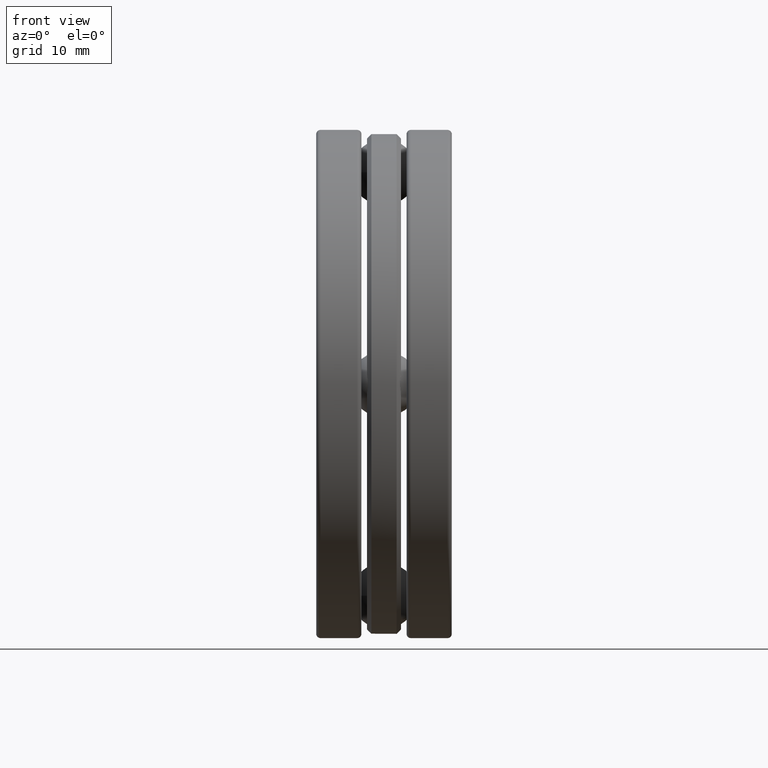
[diagram: clean part render]
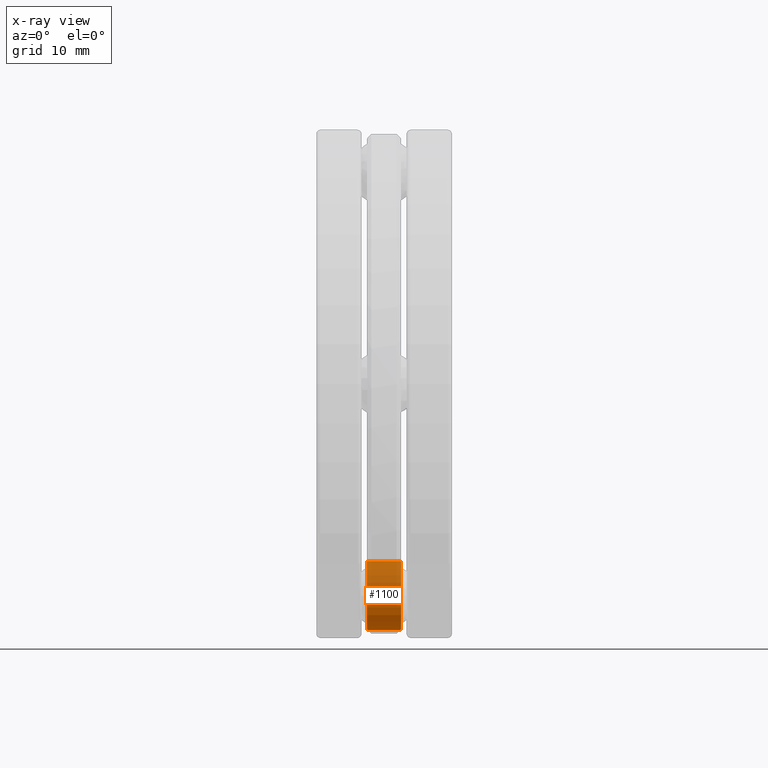
[diagram: x-ray — body ghosted, one internal face saturated and labeled with its STEP entity id]
A machine part, front view, then the same camera in x-ray: the body is ghosted and one INTERNAL B-rep face — a face not visible from any outside direction — is saturated and labeled: STEP entity #1100.
In plain terms, the highlighted cylindrical surface (bore or boss wall) has radius 4.0894 mm, axis along (1, 0, 0).
Its self-contained STEP definition (entity closure, byte-faithful):
#3 = EDGE_CURVE ( 'NONE', #685, #23, #1144, .T. ) ;
#23 = VERTEX_POINT ( 'NONE', #874 ) ;
#26 = DIRECTION ( 'NONE',  ( 1.000000000000000000, 0.0000000000000000000, 0.0000000000000000000 ) ) ;
#59 = CARTESIAN_POINT ( 'NONE',  ( 0.07450384706732948700, -0.01154806905999320400, -0.8232532177782148100 ) ) ;
#93 = CARTESIAN_POINT ( 'NONE',  ( -0.07874999999999997300, 0.03368825412629862500, -0.8268139763779528400 ) ) ;
#111 = B_SPLINE_CURVE_WITH_KNOTS ( 'NONE', 3,
 ( #1183, #803, #59, #884, #231, #331 ),
 .UNSPECIFIED., .F., .F.,
 ( 4, 2, 4 ),
 ( 8.164019558769507100E-007, 0.0008668633834641477500, 0.001732910364972418700 ),
 .UNSPECIFIED. ) ;
#116 = CARTESIAN_POINT ( 'NONE',  ( -0.3150393700787401700, -3.436490507756354400E-015, -0.9842500000000001800 ) ) ;
#143 = CARTESIAN_POINT ( 'NONE',  ( 0.07594311360279872000, 0.02672405530189333000, -1.143567882783040000 ) ) ;
#144 = CARTESIAN_POINT ( 'NONE',  ( 0.07875000000000000100, -3.436490507756354400E-015, -0.9842500000000001800 ) ) ;
#157 = EDGE_CURVE ( 'NONE', #716, #528, #179, .T. ) ;
#165 = ORIENTED_EDGE ( 'NONE', *, *, #636, .F. ) ;
#169 = EDGE_CURVE ( 'NONE', #883, #528, #308, .T. ) ;
#179 = B_SPLINE_CURVE_WITH_KNOTS ( 'NONE', 3,
 ( #1089, #143, #989, #800, #895, #889 ),
 .UNSPECIFIED., .F., .F.,
 ( 4, 2, 4 ),
 ( 9.507210780269754300E-007, 0.001018145390899835300, 0.002035340060721643900 ),
 .UNSPECIFIED. ) ;
#202 = CARTESIAN_POINT ( 'NONE',  ( -0.07874999999999997300, -0.03368825412630439800, -0.8268139763779525100 ) ) ;
#204 = CARTESIAN_POINT ( 'NONE',  ( 0.07874999999999997300, -0.03956052675460915200, -1.140313976377952600 ) ) ;
#231 = CARTESIAN_POINT ( 'NONE',  ( 0.07596646778480797800, 0.02275160098295670200, -0.8244737448228896000 ) ) ;
#308 = CIRCLE ( 'NONE', #1066, 0.1610000000000000000 ) ;
#310 = CARTESIAN_POINT ( 'NONE',  ( -0.07594311360279838700, -0.02672405530189974800, -1.143567882783040000 ) ) ;
#322 = DIRECTION ( 'NONE',  ( 0.0000000000000000000, -1.000000000000000000, 3.393599992129519500E-015 ) ) ;
#331 = CARTESIAN_POINT ( 'NONE',  ( 0.07875000000000000100, 0.03368825412629862500, -0.8268139763779528400 ) ) ;
#334 = EDGE_CURVE ( 'NONE', #421, #23, #367, .T. ) ;
#340 = DIRECTION ( 'NONE',  ( -1.000000000000000000, -0.0000000000000000000, -0.0000000000000000000 ) ) ;
#367 = CIRCLE ( 'NONE', #1129, 0.1610000000000000000 ) ;
#372 = CARTESIAN_POINT ( 'NONE',  ( -0.07874999999999997300, -0.03368825412630439800, -0.8268139763779525100 ) ) ;
#398 = CARTESIAN_POINT ( 'NONE',  ( -0.07450384706732947300, -0.01154806905999322000, -0.8232532177782148100 ) ) ;
#401 = CIRCLE ( 'NONE', #870, 0.1610000000000000000 ) ;
#406 = CARTESIAN_POINT ( 'NONE',  ( -0.07875000000000000100, 0.03956052675460119300, -1.140313976377952800 ) ) ;
#409 = CARTESIAN_POINT ( 'NONE',  ( -0.07874999999999984800, -0.03956052675460645200, -1.140313976377952800 ) ) ;
#421 = VERTEX_POINT ( 'NONE', #93 ) ;
#442 = DIRECTION ( 'NONE',  ( 0.0000000000000000000, -1.000000000000000000, 3.393599992129519500E-015 ) ) ;
#451 = VERTEX_POINT ( 'NONE', #372 ) ;
#452 = EDGE_CURVE ( 'NONE', #716, #498, #1115, .T. ) ;
#491 = EDGE_CURVE ( 'NONE', #451, #421, #1114, .T. ) ;
#494 = CARTESIAN_POINT ( 'NONE',  ( -0.07449616793591076800, 0.01145817135164384400, -0.8232467947708507200 ) ) ;
#498 = VERTEX_POINT ( 'NONE', #855 ) ;
#501 = ORIENTED_EDGE ( 'NONE', *, *, #491, .T. ) ;
#525 = CARTESIAN_POINT ( 'NONE',  ( -0.07874999999999997300, -3.436490507756354400E-015, -0.9842500000000001800 ) ) ;
#528 = VERTEX_POINT ( 'NONE', #204 ) ;
#555 = EDGE_CURVE ( 'NONE', #685, #451, #401, .T. ) ;
#578 = DIRECTION ( 'NONE',  ( 1.000000000000000000, 0.0000000000000000000, 0.0000000000000000000 ) ) ;
#583 = DIRECTION ( 'NONE',  ( 0.0000000000000000000, -1.000000000000000000, 3.393599992129519500E-015 ) ) ;
#589 = CARTESIAN_POINT ( 'NONE',  ( 0.07875000000000000100, -3.436490507756354400E-015, -0.9842500000000001800 ) ) ;
#636 = EDGE_CURVE ( 'NONE', #883, #498, #111, .T. ) ;
#666 = FACE_OUTER_BOUND ( 'NONE', #1195, .T. ) ;
#668 = CARTESIAN_POINT ( 'NONE',  ( -0.07596646778480793700, 0.02275160098295670900, -0.8244737448228896000 ) ) ;
#685 = VERTEX_POINT ( 'NONE', #1199 ) ;
#699 = CARTESIAN_POINT ( 'NONE',  ( -0.07449670548218125000, 0.01346727606613852400, -1.145253833422924500 ) ) ;
#716 = VERTEX_POINT ( 'NONE', #1109 ) ;
#745 = CARTESIAN_POINT ( 'NONE',  ( 0.07875000000000000100, -0.03368825412630439800, -0.8268139763779525100 ) ) ;
#748 = ORIENTED_EDGE ( 'NONE', *, *, #555, .T. ) ;
#749 = ORIENTED_EDGE ( 'NONE', *, *, #334, .T. ) ;
#771 = EDGE_LOOP ( 'NONE', ( #749, #827, #748, #501 ) ) ;
#783 = CARTESIAN_POINT ( 'NONE',  ( -0.07594283090128725600, 0.02672276244947110700, -1.143568210507118500 ) ) ;
#800 = CARTESIAN_POINT ( 'NONE',  ( 0.07449670548218120800, -0.01346727606614798800, -1.145253833422924100 ) ) ;
#801 = ORIENTED_EDGE ( 'NONE', *, *, #169, .T. ) ;
#803 = CARTESIAN_POINT ( 'NONE',  ( 0.07596697982295437500, -0.02275361280936530000, -0.8244741753147012400 ) ) ;
#807 = DIRECTION ( 'NONE',  ( 0.0000000000000000000, -1.000000000000000000, 3.393599992129519500E-015 ) ) ;
#827 = ORIENTED_EDGE ( 'NONE', *, *, #3, .F. ) ;
#855 = CARTESIAN_POINT ( 'NONE',  ( 0.07875000000000000100, 0.03368825412629862500, -0.8268139763779528400 ) ) ;
#866 = CARTESIAN_POINT ( 'NONE',  ( -0.07450330569084434600, -0.01355877705106513900, -1.145246153576407400 ) ) ;
#870 = AXIS2_PLACEMENT_3D ( 'NONE', #525, #340, #442 ) ;
#874 = CARTESIAN_POINT ( 'NONE',  ( -0.07875000000000000100, 0.03956052675460119300, -1.140313976377952800 ) ) ;
#883 = VERTEX_POINT ( 'NONE', #745 ) ;
#884 = CARTESIAN_POINT ( 'NONE',  ( 0.07449616793591080900, 0.01145817135164385100, -0.8232467947708507200 ) ) ;
#889 = CARTESIAN_POINT ( 'NONE',  ( 0.07874999999999997300, -0.03956052675460915200, -1.140313976377952600 ) ) ;
#895 = CARTESIAN_POINT ( 'NONE',  ( 0.07594283090128692300, -0.02672276244947764300, -1.143568210507118800 ) ) ;
#910 = CYLINDRICAL_SURFACE ( 'NONE', #1098, 0.1610000000000000000 ) ;
#941 = DIRECTION ( 'NONE',  ( 0.0000000000000000000, -1.000000000000000000, 3.393599992129519500E-015 ) ) ;
#984 = DIRECTION ( 'NONE',  ( 1.000000000000000000, 0.0000000000000000000, 0.0000000000000000000 ) ) ;
#989 = CARTESIAN_POINT ( 'NONE',  ( 0.07450330569084436000, 0.01355877705105887500, -1.145246153576407600 ) ) ;
#1017 = FACE_OUTER_BOUND ( 'NONE', #771, .T. ) ;
#1040 = CARTESIAN_POINT ( 'NONE',  ( -0.07596697982295434700, -0.02275361280936529600, -0.8244741753147012400 ) ) ;
#1066 = AXIS2_PLACEMENT_3D ( 'NONE', #144, #984, #807 ) ;
#1089 = CARTESIAN_POINT ( 'NONE',  ( 0.07875000000000000100, 0.03956052675459849300, -1.140313976377953300 ) ) ;
#1098 = AXIS2_PLACEMENT_3D ( 'NONE', #116, #26, #322 ) ;
#1100 = ADVANCED_FACE ( 'NONE', ( #666, #1017 ), #910, .F. ) ;
#1109 = CARTESIAN_POINT ( 'NONE',  ( 0.07875000000000000100, 0.03956052675459849300, -1.140313976377953300 ) ) ;
#1114 = B_SPLINE_CURVE_WITH_KNOTS ( 'NONE', 3,
 ( #202, #1040, #398, #494, #668, #1145 ),
 .UNSPECIFIED., .F., .F.,
 ( 4, 2, 4 ),
 ( 8.164019558774861400E-007, 0.0008668633834641481800, 0.001732910364972418900 ),
 .UNSPECIFIED. ) ;
#1115 = CIRCLE ( 'NONE', #1207, 0.1610000000000000000 ) ;
#1117 = ORIENTED_EDGE ( 'NONE', *, *, #157, .F. ) ;
#1122 = CARTESIAN_POINT ( 'NONE',  ( -0.07874999999999997300, -3.436490507756354400E-015, -0.9842500000000001800 ) ) ;
#1129 = AXIS2_PLACEMENT_3D ( 'NONE', #1122, #1131, #941 ) ;
#1131 = DIRECTION ( 'NONE',  ( -1.000000000000000000, -0.0000000000000000000, -0.0000000000000000000 ) ) ;
#1144 = B_SPLINE_CURVE_WITH_KNOTS ( 'NONE', 3,
 ( #409, #310, #866, #699, #783, #406 ),
 .UNSPECIFIED., .F., .F.,
 ( 4, 2, 4 ),
 ( 9.507210757206721100E-007, 0.001018145390897526600, 0.002035340060719332800 ),
 .UNSPECIFIED. ) ;
#1145 = CARTESIAN_POINT ( 'NONE',  ( -0.07874999999999997300, 0.03368825412629862500, -0.8268139763779528400 ) ) ;
#1183 = CARTESIAN_POINT ( 'NONE',  ( 0.07875000000000000100, -0.03368825412630439800, -0.8268139763779525100 ) ) ;
#1194 = ORIENTED_EDGE ( 'NONE', *, *, #452, .T. ) ;
#1195 = EDGE_LOOP ( 'NONE', ( #1194, #165, #801, #1117 ) ) ;
#1199 = CARTESIAN_POINT ( 'NONE',  ( -0.07874999999999984800, -0.03956052675460645200, -1.140313976377952800 ) ) ;
#1207 = AXIS2_PLACEMENT_3D ( 'NONE', #589, #578, #583 ) ;